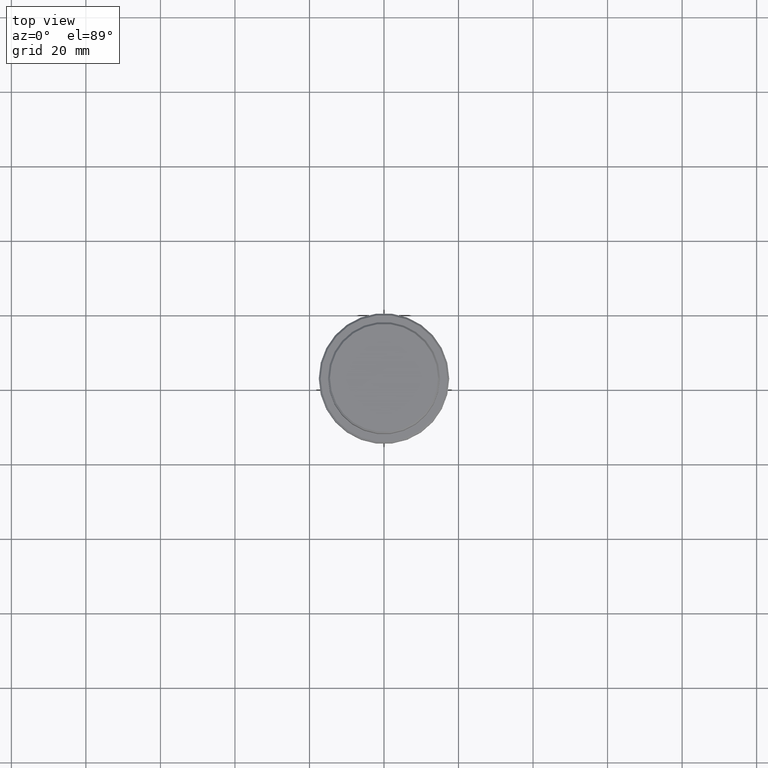
[diagram: clean part render]
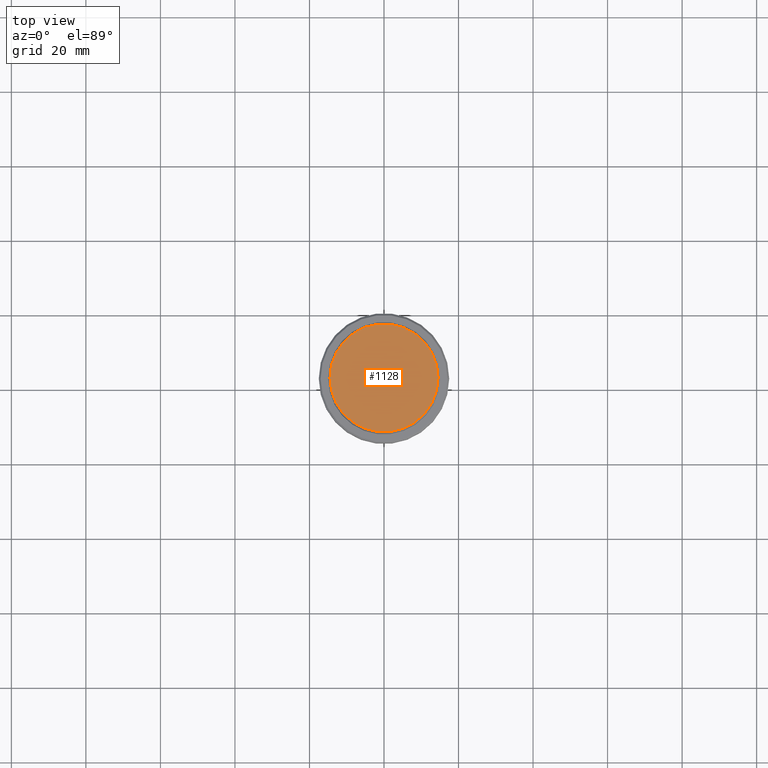
[diagram: same view with one face highlighted and labeled with its STEP entity id]
A machine part, top view. The second image highlights one B-rep face of the part: STEP entity #1128.
In plain terms, the highlighted planar face has unit normal (0, -0, 1).
Its self-contained STEP definition (entity closure, byte-faithful):
#56 = CARTESIAN_POINT ( 'NONE',  ( -14.50000000000003908, 0.000000000000000000, 0.000000000000000000 ) ) ;
#93 = CARTESIAN_POINT ( 'NONE',  ( 0.000000000000000000, 0.000000000000000000, 0.000000000000000000 ) ) ;
#231 = CIRCLE ( 'NONE', #858, 14.50000000000003908 ) ;
#243 = CIRCLE ( 'NONE', #1017, 14.50000000000003908 ) ;
#339 = FACE_OUTER_BOUND ( 'NONE', #1207, .T. ) ;
#385 = EDGE_CURVE ( 'NONE', #470, #401, #243, .T. ) ;
#401 = VERTEX_POINT ( 'NONE', #56 ) ;
#470 = VERTEX_POINT ( 'NONE', #828 ) ;
#552 = DIRECTION ( 'NONE',  ( -0.000000000000000000, -0.000000000000000000, 1.000000000000000000 ) ) ;
#575 = DIRECTION ( 'NONE',  ( 0.000000000000000000, -0.000000000000000000, 1.000000000000000000 ) ) ;
#640 = AXIS2_PLACEMENT_3D ( 'NONE', #1321, #575, #681 ) ;
#681 = DIRECTION ( 'NONE',  ( 1.000000000000000000, 0.000000000000000000, 0.000000000000000000 ) ) ;
#828 = CARTESIAN_POINT ( 'NONE',  ( 14.50000000000003908, 1.806354028742348168E-15, 0.000000000000000000 ) ) ;
#858 = AXIS2_PLACEMENT_3D ( 'NONE', #93, #552, #981 ) ;
#878 = PLANE ( 'NONE',  #640 ) ;
#981 = DIRECTION ( 'NONE',  ( 1.000000000000000000, 0.000000000000000000, 0.000000000000000000 ) ) ;
#984 = EDGE_CURVE ( 'NONE', #401, #470, #231, .T. ) ;
#1017 = AXIS2_PLACEMENT_3D ( 'NONE', #1165, #1272, #1032 ) ;
#1032 = DIRECTION ( 'NONE',  ( 1.000000000000000000, 0.000000000000000000, 0.000000000000000000 ) ) ;
#1114 = ORIENTED_EDGE ( 'NONE', *, *, #385, .T. ) ;
#1128 = ADVANCED_FACE ( 'NONE', ( #339 ), #878, .T. ) ;
#1165 = CARTESIAN_POINT ( 'NONE',  ( 0.000000000000000000, 0.000000000000000000, 0.000000000000000000 ) ) ;
#1207 = EDGE_LOOP ( 'NONE', ( #1322, #1114 ) ) ;
#1272 = DIRECTION ( 'NONE',  ( -0.000000000000000000, -0.000000000000000000, 1.000000000000000000 ) ) ;
#1321 = CARTESIAN_POINT ( 'NONE',  ( 0.000000000000000000, 0.000000000000000000, 0.000000000000000000 ) ) ;
#1322 = ORIENTED_EDGE ( 'NONE', *, *, #984, .T. ) ;